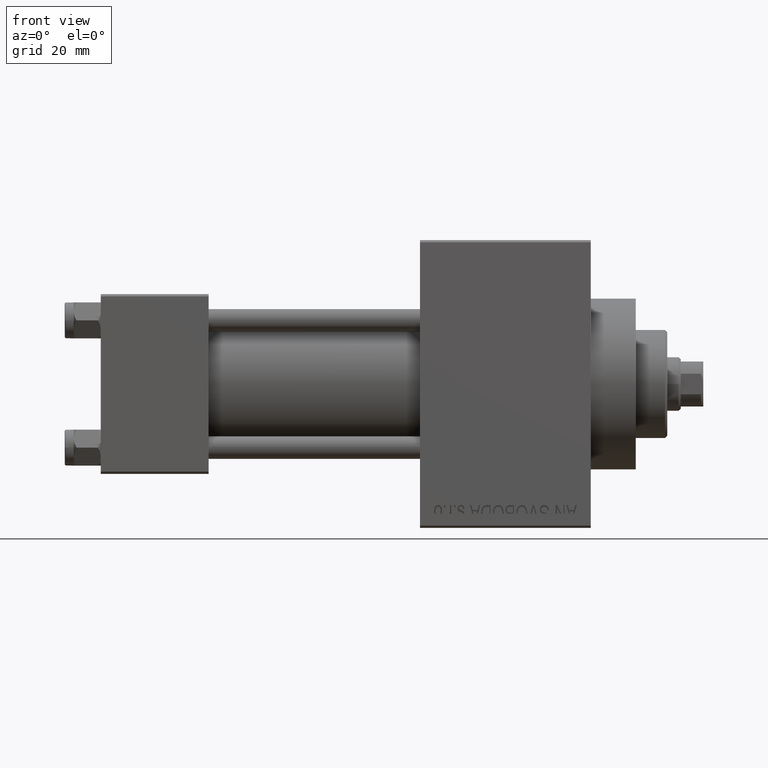
[diagram: clean part render]
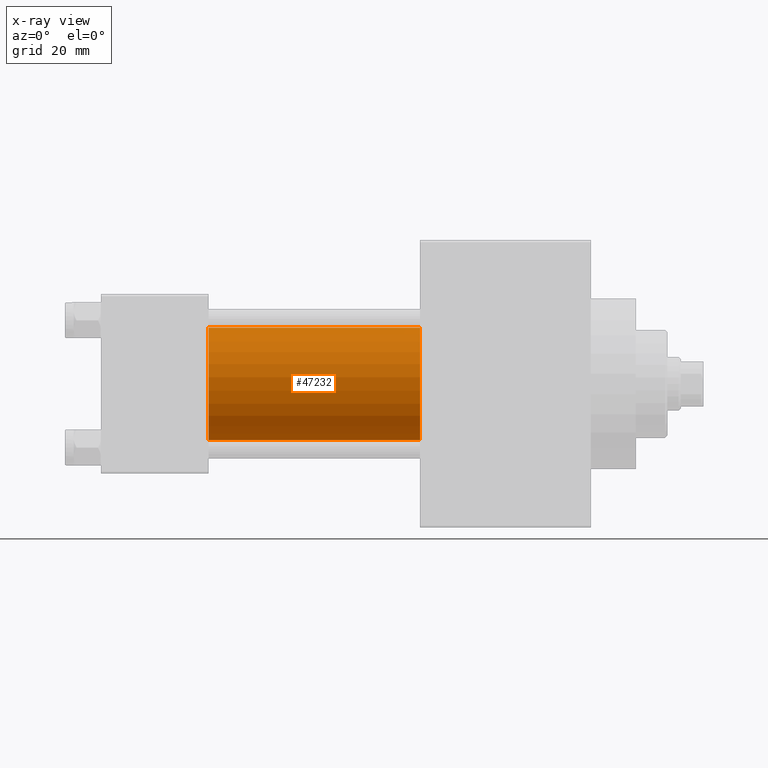
[diagram: x-ray — body ghosted, one internal face saturated and labeled with its STEP entity id]
A machine part, front view, then the same camera in x-ray: the body is ghosted and one INTERNAL B-rep face — a face not visible from any outside direction — is saturated and labeled: STEP entity #47232.
In plain terms, the highlighted cylindrical surface (partial cylindrical patch) has radius 12.5 mm, axis along (-1, -0, -0).
Its self-contained STEP definition (entity closure, byte-faithful):
#1161 = VECTOR ( 'NONE', #34215, 1000.000000000000000 ) ;
#3294 = VERTEX_POINT ( 'NONE', #17803 ) ;
#3539 = AXIS2_PLACEMENT_3D ( 'NONE', #4501, #29864, #41024 ) ;
#3711 = EDGE_CURVE ( 'NONE', #6499, #3294, #44686, .T. ) ;
#3727 = VERTEX_POINT ( 'NONE', #29613 ) ;
#4501 = CARTESIAN_POINT ( 'NONE',  ( 24.00000000000000000, -2.602085213965210642E-15, 0.000000000000000000 ) ) ;
#4744 = CARTESIAN_POINT ( 'NONE',  ( 24.00000000000000000, -2.602085213965210642E-15, 12.49999999999999645 ) ) ;
#5676 = CARTESIAN_POINT ( 'NONE',  ( 71.00000000000001421, -2.602085213965210642E-15, 0.000000000000000000 ) ) ;
#6499 = VERTEX_POINT ( 'NONE', #4744 ) ;
#7674 = EDGE_CURVE ( 'NONE', #43850, #3294, #48622, .T. ) ;
#9241 = EDGE_CURVE ( 'NONE', #3727, #6499, #22231, .T. ) ;
#10802 = ORIENTED_EDGE ( 'NONE', *, *, #7674, .T. ) ;
#13167 = CARTESIAN_POINT ( 'NONE',  ( 71.00000000000001421, -2.602085213965210642E-15, 0.000000000000000000 ) ) ;
#14988 = ORIENTED_EDGE ( 'NONE', *, *, #3711, .F. ) ;
#15562 = EDGE_CURVE ( 'NONE', #3727, #43850, #38684, .T. ) ;
#17569 = DIRECTION ( 'NONE',  ( 1.000000000000000000, 0.000000000000000000, 0.000000000000000000 ) ) ;
#17803 = CARTESIAN_POINT ( 'NONE',  ( 24.00000000000000000, -1.071276715031019515E-15, -12.49999999999999645 ) ) ;
#19001 = DIRECTION ( 'NONE',  ( -1.000000000000000000, -0.000000000000000000, -0.000000000000000000 ) ) ;
#21067 = CYLINDRICAL_SURFACE ( 'NONE', #27345, 12.49999999999999645 ) ;
#22231 = LINE ( 'NONE', #37342, #30525 ) ;
#24415 = EDGE_LOOP ( 'NONE', ( #28130, #10802, #14988, #28367 ) ) ;
#27345 = AXIS2_PLACEMENT_3D ( 'NONE', #13167, #35933, #32469 ) ;
#28130 = ORIENTED_EDGE ( 'NONE', *, *, #15562, .T. ) ;
#28367 = ORIENTED_EDGE ( 'NONE', *, *, #9241, .F. ) ;
#28487 = FACE_OUTER_BOUND ( 'NONE', #24415, .T. ) ;
#29536 = CARTESIAN_POINT ( 'NONE',  ( 71.00000000000001421, -1.071276715031019515E-15, -12.49999999999999645 ) ) ;
#29613 = CARTESIAN_POINT ( 'NONE',  ( 71.00000000000001421, -2.602085213965210642E-15, 12.49999999999999645 ) ) ;
#29864 = DIRECTION ( 'NONE',  ( 1.000000000000000000, 0.000000000000000000, 0.000000000000000000 ) ) ;
#30525 = VECTOR ( 'NONE', #19001, 1000.000000000000000 ) ;
#32469 = DIRECTION ( 'NONE',  ( 0.000000000000000000, 0.000000000000000000, 1.000000000000000000 ) ) ;
#34215 = DIRECTION ( 'NONE',  ( -1.000000000000000000, -0.000000000000000000, -0.000000000000000000 ) ) ;
#35900 = DIRECTION ( 'NONE',  ( 0.000000000000000000, 0.000000000000000000, -1.000000000000000000 ) ) ;
#35933 = DIRECTION ( 'NONE',  ( -1.000000000000000000, -0.000000000000000000, -0.000000000000000000 ) ) ;
#37342 = CARTESIAN_POINT ( 'NONE',  ( 71.00000000000001421, -2.602085213965210642E-15, 12.49999999999999645 ) ) ;
#38684 = CIRCLE ( 'NONE', #39500, 12.49999999999999645 ) ;
#39500 = AXIS2_PLACEMENT_3D ( 'NONE', #5676, #17569, #35900 ) ;
#41024 = DIRECTION ( 'NONE',  ( 0.000000000000000000, 0.000000000000000000, -1.000000000000000000 ) ) ;
#42004 = CARTESIAN_POINT ( 'NONE',  ( 71.00000000000001421, -1.071276715031019515E-15, -12.49999999999999645 ) ) ;
#43850 = VERTEX_POINT ( 'NONE', #42004 ) ;
#44686 = CIRCLE ( 'NONE', #3539, 12.49999999999999645 ) ;
#47232 = ADVANCED_FACE ( 'NONE', ( #28487 ), #21067, .F. ) ;
#48622 = LINE ( 'NONE', #29536, #1161 ) ;